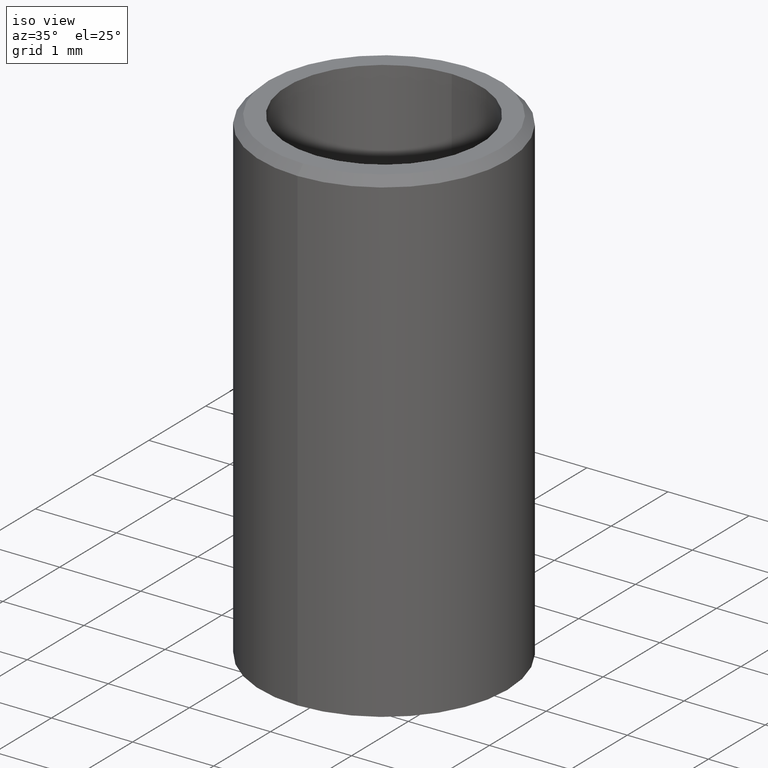
[diagram: clean part render]
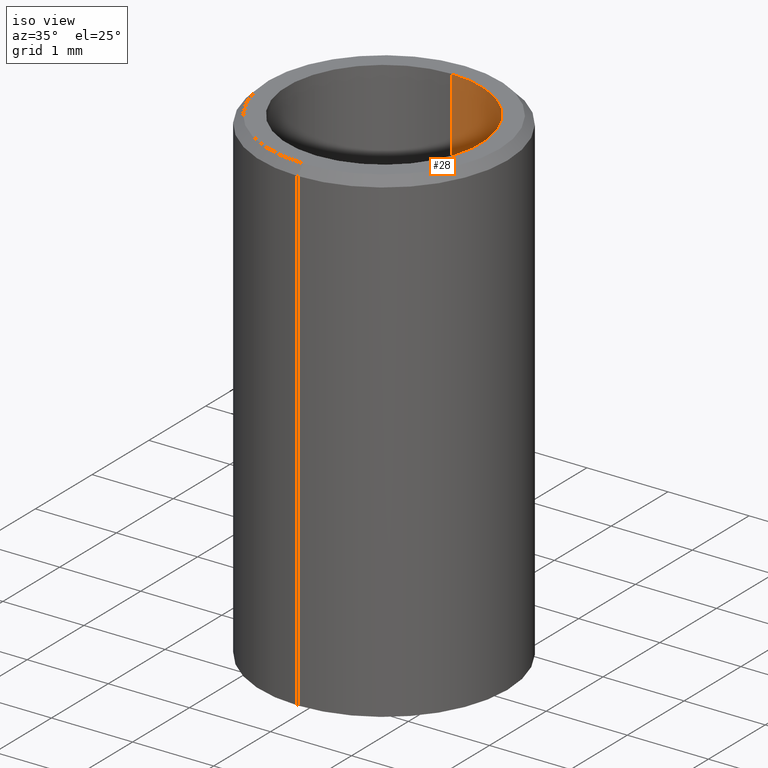
[diagram: same view with one face highlighted and labeled with its STEP entity id]
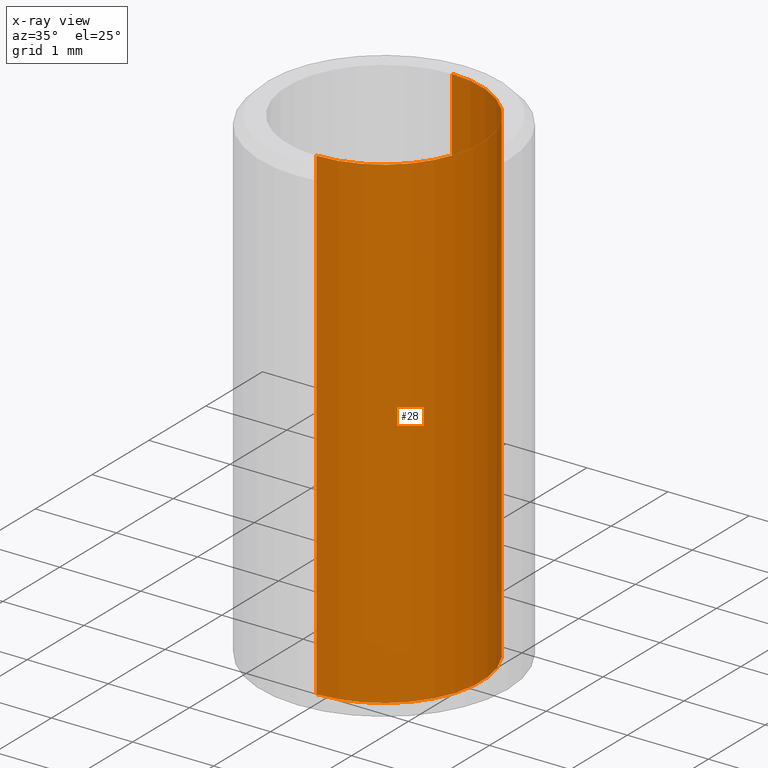
[diagram: x-ray of the same camera — body ghosted, the highlighted face saturated]
A machine part, iso view. The second image highlights one B-rep face of the part: STEP entity #28.
The next image is the same camera in x-ray: the body ghosted, the highlighted face saturated — about 1% of this face is hidden behind the body in this view.
In plain terms, the highlighted cylindrical surface (partial cylindrical patch) has radius 1.1938 mm, axis along (0, 0, -1).
Its self-contained STEP definition (entity closure, byte-faithful):
#28=ADVANCED_FACE('',(#36),#85,.F.);
#36=FACE_OUTER_BOUND('',#45,.F.);
#45=EDGE_LOOP('',(#63,#64,#65,#66));
#63=ORIENTED_EDGE('',*,*,#114,.F.);
#64=ORIENTED_EDGE('',*,*,#119,.F.);
#65=ORIENTED_EDGE('',*,*,#115,.T.);
#66=ORIENTED_EDGE('',*,*,#118,.F.);
#85=CYLINDRICAL_SURFACE('',#185,1.1938);
#95=LINE('',#261,#101);
#96=LINE('',#262,#102);
#101=VECTOR('',#210,6.);
#102=VECTOR('',#211,6.);
#114=EDGE_CURVE('',#136,#137,#95,.T.);
#115=EDGE_CURVE('',#135,#138,#96,.T.);
#118=EDGE_CURVE('',#137,#138,#130,.T.);
#119=EDGE_CURVE('',#135,#136,#131,.T.);
#130=CIRCLE('',#179,1.1938);
#131=CIRCLE('',#180,1.1938);
#135=VERTEX_POINT('',#246);
#136=VERTEX_POINT('',#247);
#137=VERTEX_POINT('',#248);
#138=VERTEX_POINT('',#249);
#179=AXIS2_PLACEMENT_3D('',#265,#214,#215);
#180=AXIS2_PLACEMENT_3D('',#266,#216,#217);
#185=AXIS2_PLACEMENT_3D('',#273,#228,#229);
#210=DIRECTION('',(0.,0.,1.));
#211=DIRECTION('',(0.,0.,1.));
#214=DIRECTION('',(0.,0.,1.));
#215=DIRECTION('',(0.,-1.,0.));
#216=DIRECTION('',(0.,0.,-1.));
#217=DIRECTION('',(0.,1.,0.));
#228=DIRECTION('',(0.,0.,-1.));
#229=DIRECTION('',(0.,1.,0.));
#246=CARTESIAN_POINT('',(0.,1.1938,-6.));
#247=CARTESIAN_POINT('',(0.,-1.1938,-6.));
#248=CARTESIAN_POINT('',(0.,-1.1938,0.));
#249=CARTESIAN_POINT('',(0.,1.1938,0.));
#261=CARTESIAN_POINT('',(0.,-1.1938,-6.));
#262=CARTESIAN_POINT('',(0.,1.1938,-6.));
#265=CARTESIAN_POINT('',(0.,0.,0.));
#266=CARTESIAN_POINT('',(0.,0.,-6.));
#273=CARTESIAN_POINT('',(0.,0.,-6.));